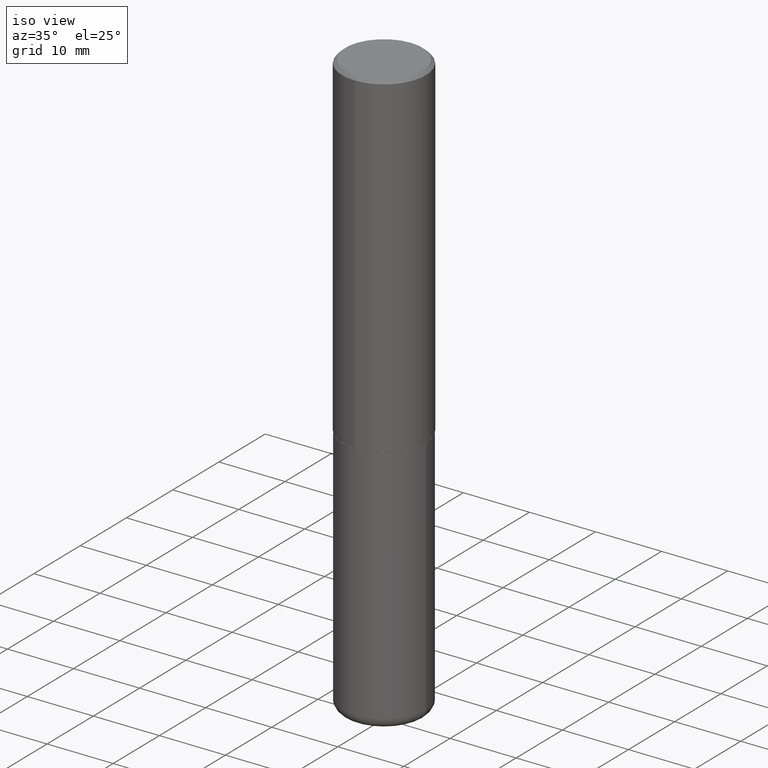
[diagram: clean part render]
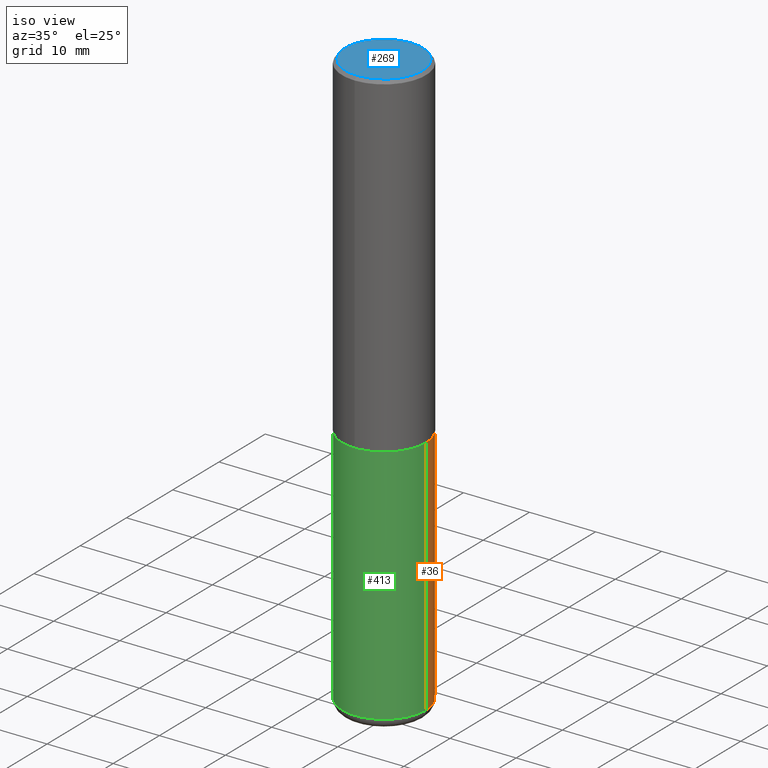
[diagram: same view with three faces highlighted in distinct colors, each labeled with its STEP entity id]
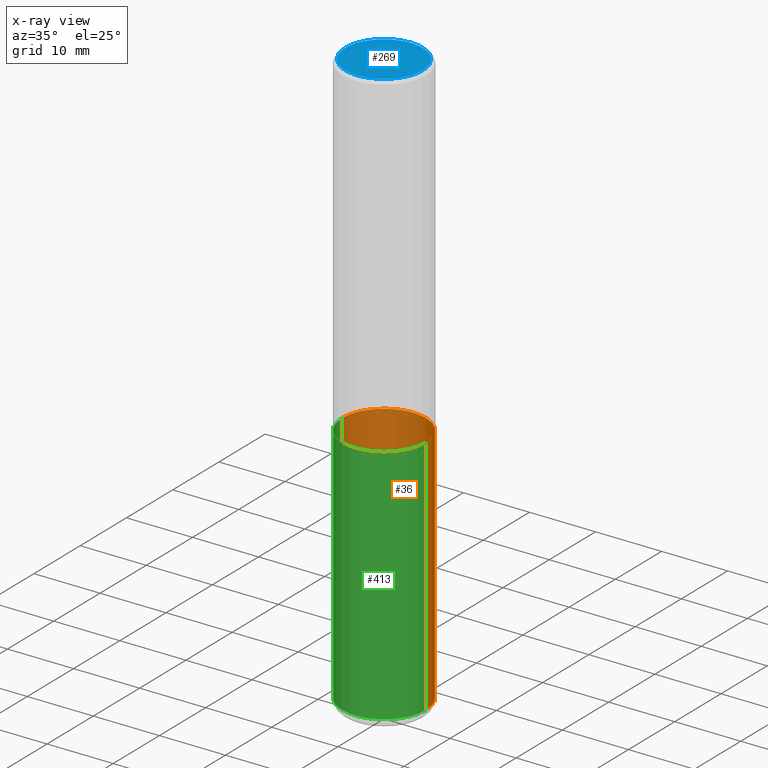
[diagram: x-ray of the same camera — body ghosted, the three highlighted faces saturated]
A machine part, iso view with three faces highlighted in distinct colors.
The next image is the same camera in x-ray (body ghosted, the three faces saturated) — at least one of them is partly hidden behind the body in this view.
Their STEP definitions:

[orange] entity #36 — the highlighted cylindrical surface (partial cylindrical patch) has radius 6.35 mm, axis along (-0, 0, 1).
#22 = LINE ( 'NONE', #407, #408 ) ;
#24 = AXIS2_PLACEMENT_3D ( 'NONE', #283, #124, #367 ) ;
#36 = ADVANCED_FACE ( 'NONE', ( #364 ), #80, .T. ) ;
#42 = DIRECTION ( 'NONE',  ( -2.445468806185136597E-29, 3.491481338843145583E-15, 1.000000000000000000 ) ) ;
#44 = AXIS2_PLACEMENT_3D ( 'NONE', #200, #375, #322 ) ;
#53 = AXIS2_PLACEMENT_3D ( 'NONE', #396, #42, #190 ) ;
#59 = EDGE_LOOP ( 'NONE', ( #357, #399, #163, #373 ) ) ;
#80 = CYLINDRICAL_SURFACE ( 'NONE', #44, 0.2500000000000000000 ) ;
#95 = CARTESIAN_POINT ( 'NONE',  ( -0.2499999999999999722, -1.023433896622016898E-14, -3.439999999999999947 ) ) ;
#110 = VERTEX_POINT ( 'NONE', #318 ) ;
#113 = VERTEX_POINT ( 'NONE', #164 ) ;
#119 = EDGE_CURVE ( 'NONE', #110, #139, #203, .T. ) ;
#124 = DIRECTION ( 'NONE',  ( -2.445468806185136597E-29, 3.491481338843145583E-15, 1.000000000000000000 ) ) ;
#139 = VERTEX_POINT ( 'NONE', #95 ) ;
#146 = VECTOR ( 'NONE', #310, 39.37007874015748143 ) ;
#148 = CARTESIAN_POINT ( 'NONE',  ( -0.2500000000000000000, 1.776356839400250465E-15, -1.229733772563726445E-29 ) ) ;
#163 = ORIENTED_EDGE ( 'NONE', *, *, #201, .F. ) ;
#164 = CARTESIAN_POINT ( 'NONE',  ( -0.2500000000000000000, -7.720472402253106025E-15, -2.000000000000000000 ) ) ;
#190 = DIRECTION ( 'NONE',  ( 1.000000000000000000, -6.982962677686266711E-15, 0.000000000000000000 ) ) ;
#200 = CARTESIAN_POINT ( 'NONE',  ( 0.000000000000000000, 0.000000000000000000, 0.000000000000000000 ) ) ;
#201 = EDGE_CURVE ( 'NONE', #337, #113, #231, .T. ) ;
#203 = CIRCLE ( 'NONE', #24, 0.2500000000000000000 ) ;
#231 = CIRCLE ( 'NONE', #53, 0.2500000000000000000 ) ;
#239 = EDGE_CURVE ( 'NONE', #110, #337, #22, .T. ) ;
#283 = CARTESIAN_POINT ( 'NONE',  ( 8.412412693276869938E-29, -1.201069580562042103E-14, -3.439999999999999947 ) ) ;
#297 = DIRECTION ( 'NONE',  ( -2.445468806185136877E-29, 3.491481338843145188E-15, 1.000000000000000000 ) ) ;
#298 = EDGE_CURVE ( 'NONE', #139, #113, #406, .T. ) ;
#310 = DIRECTION ( 'NONE',  ( -2.445468806185136877E-29, 3.491481338843145188E-15, 1.000000000000000000 ) ) ;
#318 = CARTESIAN_POINT ( 'NONE',  ( 0.2499999999999999722, -1.375643647504198770E-14, -3.439999999999999947 ) ) ;
#322 = DIRECTION ( 'NONE',  ( 1.000000000000000000, -6.982962677686266711E-15, 4.876176775795935793E-29 ) ) ;
#337 = VERTEX_POINT ( 'NONE', #374 ) ;
#357 = ORIENTED_EDGE ( 'NONE', *, *, #119, .T. ) ;
#364 = FACE_OUTER_BOUND ( 'NONE', #59, .T. ) ;
#367 = DIRECTION ( 'NONE',  ( 1.000000000000000000, -6.982962677686270655E-15, 0.000000000000000000 ) ) ;
#373 = ORIENTED_EDGE ( 'NONE', *, *, #239, .F. ) ;
#374 = CARTESIAN_POINT ( 'NONE',  ( 0.2500000000000000000, -8.728703347107857054E-15, -2.000000000000000000 ) ) ;
#375 = DIRECTION ( 'NONE',  ( -2.445468806185136597E-29, 3.491481338843145583E-15, 1.000000000000000000 ) ) ;
#396 = CARTESIAN_POINT ( 'NONE',  ( 4.890937612370273194E-29, -6.982962677686291165E-15, -2.000000000000000000 ) ) ;
#399 = ORIENTED_EDGE ( 'NONE', *, *, #298, .T. ) ;
#406 = LINE ( 'NONE', #148, #146 ) ;
#407 = CARTESIAN_POINT ( 'NONE',  ( 0.2500000000000000000, -1.745740669421566678E-15, 1.219044193948983948E-29 ) ) ;
#408 = VECTOR ( 'NONE', #297, 39.37007874015748143 ) ;

[blue] entity #269 — the highlighted planar face has unit normal (0, -0, -1).
#9 = PLANE ( 'NONE',  #116 ) ;
#17 = DIRECTION ( 'NONE',  ( -2.444078991372175563E-29, 3.493471632758652550E-15, 1.000000000000000000 ) ) ;
#47 = ORIENTED_EDGE ( 'NONE', *, *, #293, .T. ) ;
#76 = AXIS2_PLACEMENT_3D ( 'NONE', #381, #209, #277 ) ;
#86 = CARTESIAN_POINT ( 'NONE',  ( -7.626972843823584403E-45, 1.090169890898625670E-30, 3.120591793778966343E-16 ) ) ;
#87 = CARTESIAN_POINT ( 'NONE',  ( 1.675911042644703182E-15, 0.2299999999999997047, -4.914392961565924424E-16 ) ) ;
#104 = AXIS2_PLACEMENT_3D ( 'NONE', #86, #17, #152 ) ;
#116 = AXIS2_PLACEMENT_3D ( 'NONE', #126, #246, #212 ) ;
#126 = CARTESIAN_POINT ( 'NONE',  ( 1.606081415867839095E-15, 0.2299999999999997047, -6.474688858455407103E-16 ) ) ;
#151 = ORIENTED_EDGE ( 'NONE', *, *, #191, .T. ) ;
#152 = DIRECTION ( 'NONE',  ( -6.982962677686265922E-15, -1.000000000000000000, 3.493471632758652550E-15 ) ) ;
#183 = CARTESIAN_POINT ( 'NONE',  ( -1.646519519465166376E-15, -0.2299999999999997047, 1.115557654912385711E-15 ) ) ;
#191 = EDGE_CURVE ( 'NONE', #372, #220, #388, .T. ) ;
#209 = DIRECTION ( 'NONE',  ( -2.444078991372175563E-29, 3.493471632758652550E-15, 1.000000000000000000 ) ) ;
#212 = DIRECTION ( 'NONE',  ( 6.982962677686265922E-15, 1.000000000000000000, -3.493471632758652550E-15 ) ) ;
#220 = VERTEX_POINT ( 'NONE', #87 ) ;
#234 = CIRCLE ( 'NONE', #104, 0.2299999999999997047 ) ;
#246 = DIRECTION ( 'NONE',  ( 2.444078991372175283E-29, -3.493471632758652550E-15, -1.000000000000000000 ) ) ;
#269 = ADVANCED_FACE ( 'NONE', ( #415 ), #9, .F. ) ;
#277 = DIRECTION ( 'NONE',  ( -6.982962677686265922E-15, -1.000000000000000000, 3.493471632758652550E-15 ) ) ;
#293 = EDGE_CURVE ( 'NONE', #220, #372, #234, .T. ) ;
#372 = VERTEX_POINT ( 'NONE', #183 ) ;
#381 = CARTESIAN_POINT ( 'NONE',  ( -7.626972843823584403E-45, 1.090169890898625670E-30, 3.120591793778966343E-16 ) ) ;
#388 = CIRCLE ( 'NONE', #76, 0.2299999999999997047 ) ;
#405 = EDGE_LOOP ( 'NONE', ( #47, #151 ) ) ;
#415 = FACE_OUTER_BOUND ( 'NONE', #405, .T. ) ;

[green] entity #413 — the highlighted cylindrical surface (partial cylindrical patch) has radius 6.35 mm, axis along (-0, 0, 1).
#22 = LINE ( 'NONE', #407, #408 ) ;
#27 = DIRECTION ( 'NONE',  ( -2.445468806185136597E-29, 3.491481338843145583E-15, 1.000000000000000000 ) ) ;
#50 = EDGE_LOOP ( 'NONE', ( #227, #282, #206, #366 ) ) ;
#69 = EDGE_CURVE ( 'NONE', #139, #110, #390, .T. ) ;
#85 = DIRECTION ( 'NONE',  ( 1.000000000000000000, -6.982962677686266711E-15, 4.876176775795935793E-29 ) ) ;
#95 = CARTESIAN_POINT ( 'NONE',  ( -0.2499999999999999722, -1.023433896622016898E-14, -3.439999999999999947 ) ) ;
#101 = DIRECTION ( 'NONE',  ( 1.000000000000000000, -6.982962677686270655E-15, 0.000000000000000000 ) ) ;
#110 = VERTEX_POINT ( 'NONE', #318 ) ;
#113 = VERTEX_POINT ( 'NONE', #164 ) ;
#121 = DIRECTION ( 'NONE',  ( 1.000000000000000000, -6.982962677686266711E-15, 0.000000000000000000 ) ) ;
#123 = CARTESIAN_POINT ( 'NONE',  ( 4.890937612370273194E-29, -6.982962677686291165E-15, -2.000000000000000000 ) ) ;
#130 = CARTESIAN_POINT ( 'NONE',  ( 8.412412693276869938E-29, -1.201069580562042103E-14, -3.439999999999999947 ) ) ;
#139 = VERTEX_POINT ( 'NONE', #95 ) ;
#146 = VECTOR ( 'NONE', #310, 39.37007874015748143 ) ;
#148 = CARTESIAN_POINT ( 'NONE',  ( -0.2500000000000000000, 1.776356839400250465E-15, -1.229733772563726445E-29 ) ) ;
#159 = CYLINDRICAL_SURFACE ( 'NONE', #335, 0.2500000000000000000 ) ;
#164 = CARTESIAN_POINT ( 'NONE',  ( -0.2500000000000000000, -7.720472402253106025E-15, -2.000000000000000000 ) ) ;
#206 = ORIENTED_EDGE ( 'NONE', *, *, #239, .T. ) ;
#223 = AXIS2_PLACEMENT_3D ( 'NONE', #123, #404, #121 ) ;
#227 = ORIENTED_EDGE ( 'NONE', *, *, #298, .F. ) ;
#233 = FACE_OUTER_BOUND ( 'NONE', #50, .T. ) ;
#239 = EDGE_CURVE ( 'NONE', #110, #337, #22, .T. ) ;
#271 = CIRCLE ( 'NONE', #223, 0.2500000000000000000 ) ;
#282 = ORIENTED_EDGE ( 'NONE', *, *, #69, .T. ) ;
#297 = DIRECTION ( 'NONE',  ( -2.445468806185136877E-29, 3.491481338843145188E-15, 1.000000000000000000 ) ) ;
#298 = EDGE_CURVE ( 'NONE', #139, #113, #406, .T. ) ;
#310 = DIRECTION ( 'NONE',  ( -2.445468806185136877E-29, 3.491481338843145188E-15, 1.000000000000000000 ) ) ;
#313 = EDGE_CURVE ( 'NONE', #113, #337, #271, .T. ) ;
#318 = CARTESIAN_POINT ( 'NONE',  ( 0.2499999999999999722, -1.375643647504198770E-14, -3.439999999999999947 ) ) ;
#335 = AXIS2_PLACEMENT_3D ( 'NONE', #397, #371, #85 ) ;
#337 = VERTEX_POINT ( 'NONE', #374 ) ;
#358 = AXIS2_PLACEMENT_3D ( 'NONE', #130, #27, #101 ) ;
#366 = ORIENTED_EDGE ( 'NONE', *, *, #313, .F. ) ;
#371 = DIRECTION ( 'NONE',  ( -2.445468806185136597E-29, 3.491481338843145583E-15, 1.000000000000000000 ) ) ;
#374 = CARTESIAN_POINT ( 'NONE',  ( 0.2500000000000000000, -8.728703347107857054E-15, -2.000000000000000000 ) ) ;
#390 = CIRCLE ( 'NONE', #358, 0.2500000000000000000 ) ;
#397 = CARTESIAN_POINT ( 'NONE',  ( 0.000000000000000000, 0.000000000000000000, 0.000000000000000000 ) ) ;
#404 = DIRECTION ( 'NONE',  ( -2.445468806185136597E-29, 3.491481338843145583E-15, 1.000000000000000000 ) ) ;
#406 = LINE ( 'NONE', #148, #146 ) ;
#407 = CARTESIAN_POINT ( 'NONE',  ( 0.2500000000000000000, -1.745740669421566678E-15, 1.219044193948983948E-29 ) ) ;
#408 = VECTOR ( 'NONE', #297, 39.37007874015748143 ) ;
#413 = ADVANCED_FACE ( 'NONE', ( #233 ), #159, .T. ) ;